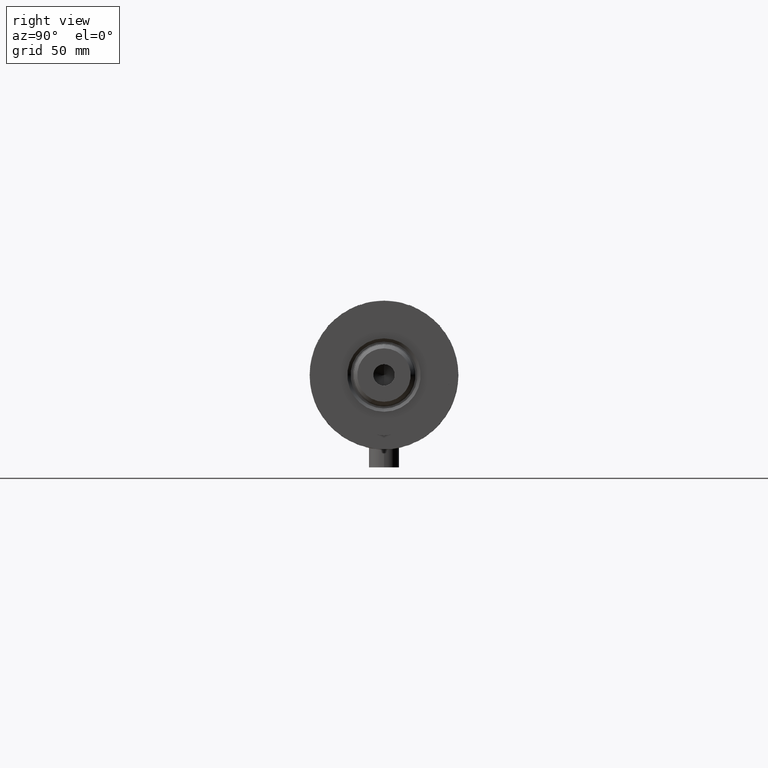
[diagram: clean part render]
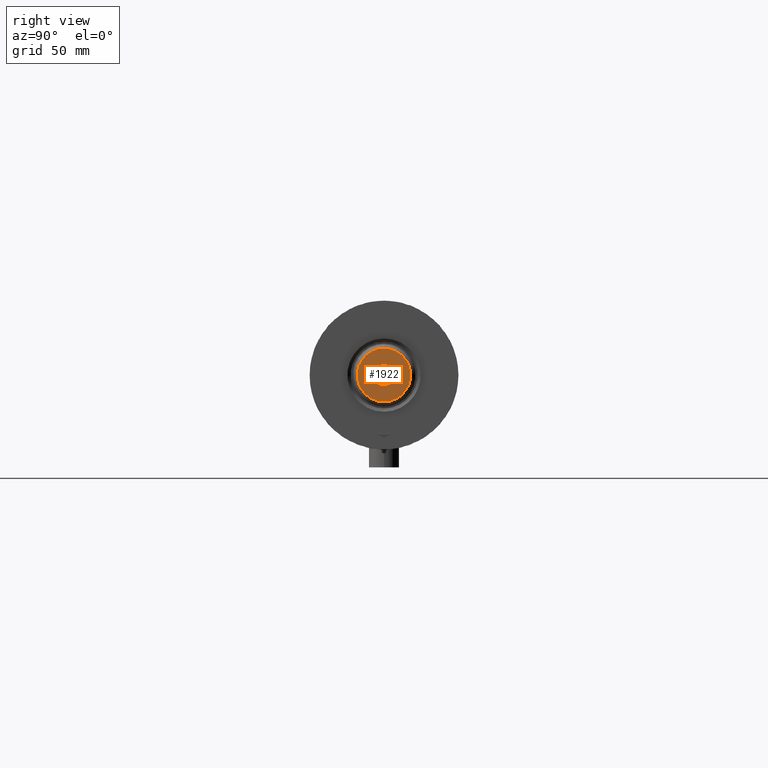
[diagram: same view with one face highlighted and labeled with its STEP entity id]
A machine part, right view. The second image highlights one B-rep face of the part: STEP entity #1922.
In plain terms, the highlighted planar face has unit normal (1, 0, -0).
Its self-contained STEP definition (entity closure, byte-faithful):
#197 = VERTEX_POINT ( 'NONE', #4319 ) ;
#239 = CIRCLE ( 'NONE', #2848, 10.59999999999994280 ) ;
#358 = VERTEX_POINT ( 'NONE', #871 ) ;
#373 = ORIENTED_EDGE ( 'NONE', *, *, #1444, .F. ) ;
#635 = AXIS2_PLACEMENT_3D ( 'NONE', #2952, #2597, #4505 ) ;
#730 = DIRECTION ( 'NONE',  ( -0.000000000000000000, -0.000000000000000000, 1.000000000000000000 ) ) ;
#871 = CARTESIAN_POINT ( 'NONE',  ( -4.249999999999997335, 5.204748896376248727E-16, 237.7500000000000284 ) ) ;
#883 = EDGE_CURVE ( 'NONE', #3838, #2046, #239, .T. ) ;
#1137 = FACE_BOUND ( 'NONE', #1567, .T. ) ;
#1444 = EDGE_CURVE ( 'NONE', #197, #358, #2853, .T. ) ;
#1470 = DIRECTION ( 'NONE',  ( 1.000000000000000000, 0.000000000000000000, 0.000000000000000000 ) ) ;
#1567 = EDGE_LOOP ( 'NONE', ( #373, #2714 ) ) ;
#1805 = AXIS2_PLACEMENT_3D ( 'NONE', #3259, #1838, #2834 ) ;
#1806 = CARTESIAN_POINT ( 'NONE',  ( 0.000000000000000000, 0.000000000000000000, 237.7500000000000284 ) ) ;
#1838 = DIRECTION ( 'NONE',  ( 0.000000000000000000, 0.000000000000000000, 1.000000000000000000 ) ) ;
#1922 = ADVANCED_FACE ( 'NONE', ( #4456, #1137 ), #2592, .T. ) ;
#1932 = CIRCLE ( 'NONE', #3339, 4.249999999999997335 ) ;
#2046 = VERTEX_POINT ( 'NONE', #2288 ) ;
#2263 = DIRECTION ( 'NONE',  ( 1.000000000000000000, 0.000000000000000000, -0.000000000000000000 ) ) ;
#2288 = CARTESIAN_POINT ( 'NONE',  ( -10.59999999999994280, 0.000000000000000000, 237.7500000000000284 ) ) ;
#2314 = EDGE_LOOP ( 'NONE', ( #2900, #4315 ) ) ;
#2356 = EDGE_CURVE ( 'NONE', #358, #197, #1932, .T. ) ;
#2385 = DIRECTION ( 'NONE',  ( 0.000000000000000000, 0.000000000000000000, 1.000000000000000000 ) ) ;
#2592 = PLANE ( 'NONE',  #3642 ) ;
#2597 = DIRECTION ( 'NONE',  ( -0.000000000000000000, -0.000000000000000000, 1.000000000000000000 ) ) ;
#2609 = DIRECTION ( 'NONE',  ( 0.000000000000000000, 0.000000000000000000, 1.000000000000000000 ) ) ;
#2714 = ORIENTED_EDGE ( 'NONE', *, *, #2356, .F. ) ;
#2740 = CARTESIAN_POINT ( 'NONE',  ( 0.000000000000000000, 0.000000000000000000, 237.7500000000000284 ) ) ;
#2834 = DIRECTION ( 'NONE',  ( 1.000000000000000000, 0.000000000000000000, 0.000000000000000000 ) ) ;
#2848 = AXIS2_PLACEMENT_3D ( 'NONE', #2740, #2385, #3526 ) ;
#2853 = CIRCLE ( 'NONE', #635, 4.249999999999997335 ) ;
#2900 = ORIENTED_EDGE ( 'NONE', *, *, #3299, .T. ) ;
#2952 = CARTESIAN_POINT ( 'NONE',  ( 0.000000000000000000, 0.000000000000000000, 237.7500000000000284 ) ) ;
#3259 = CARTESIAN_POINT ( 'NONE',  ( 0.000000000000000000, 0.000000000000000000, 237.7500000000000284 ) ) ;
#3299 = EDGE_CURVE ( 'NONE', #2046, #3838, #3881, .T. ) ;
#3339 = AXIS2_PLACEMENT_3D ( 'NONE', #1806, #730, #1470 ) ;
#3371 = CARTESIAN_POINT ( 'NONE',  ( 10.59999999999994280, 1.383850883036505715E-15, 237.7500000000000284 ) ) ;
#3526 = DIRECTION ( 'NONE',  ( 1.000000000000000000, 0.000000000000000000, 0.000000000000000000 ) ) ;
#3642 = AXIS2_PLACEMENT_3D ( 'NONE', #4475, #2609, #2263 ) ;
#3838 = VERTEX_POINT ( 'NONE', #3371 ) ;
#3881 = CIRCLE ( 'NONE', #1805, 10.59999999999994280 ) ;
#4315 = ORIENTED_EDGE ( 'NONE', *, *, #883, .T. ) ;
#4319 = CARTESIAN_POINT ( 'NONE',  ( 4.249999999999997335, 0.000000000000000000, 237.7500000000000284 ) ) ;
#4456 = FACE_OUTER_BOUND ( 'NONE', #2314, .T. ) ;
#4475 = CARTESIAN_POINT ( 'NONE',  ( 0.000000000000000000, 0.000000000000000000, 237.7500000000000284 ) ) ;
#4505 = DIRECTION ( 'NONE',  ( 1.000000000000000000, 0.000000000000000000, 0.000000000000000000 ) ) ;